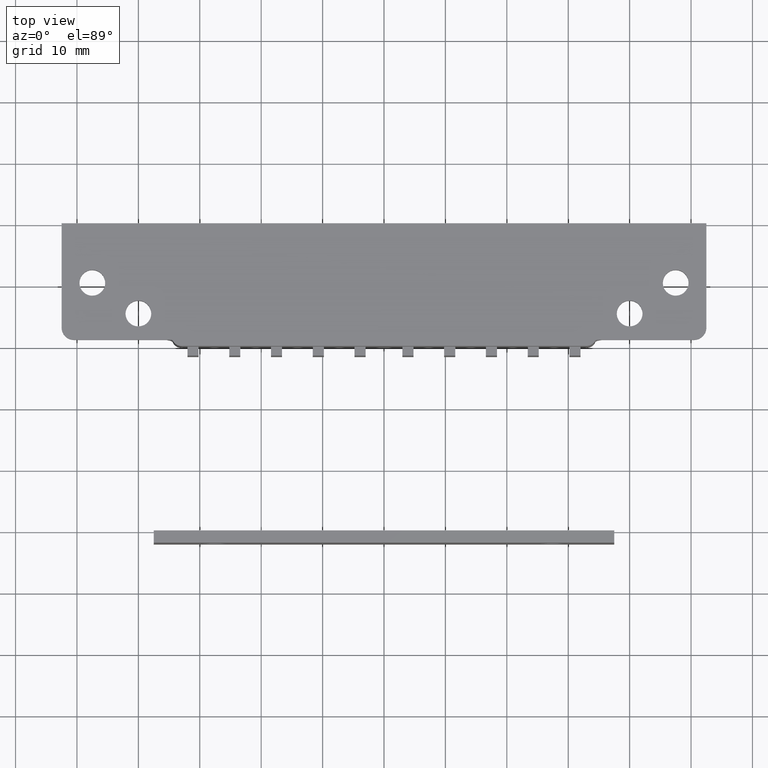
[diagram: clean part render]
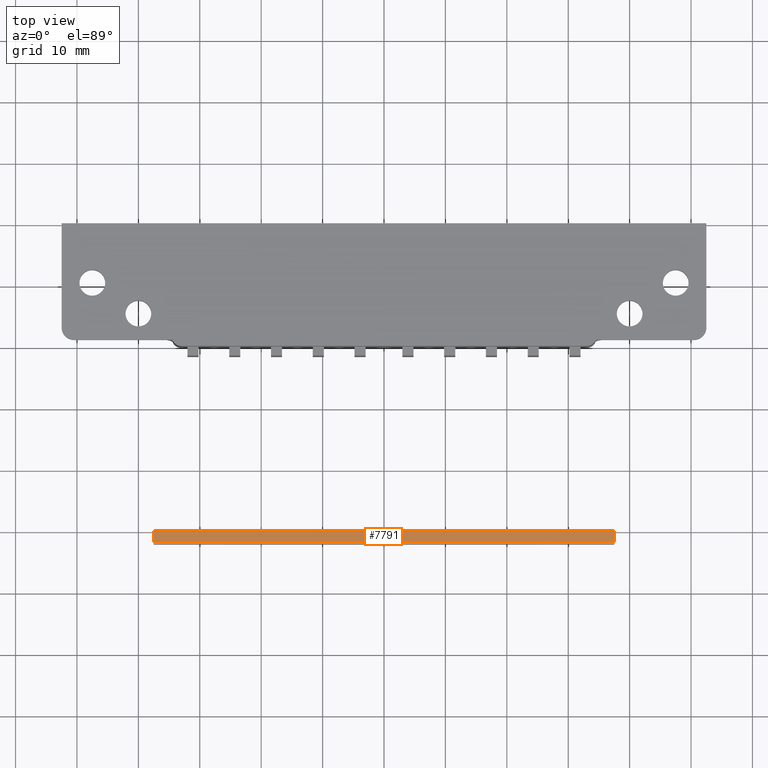
[diagram: same view with one face highlighted and labeled with its STEP entity id]
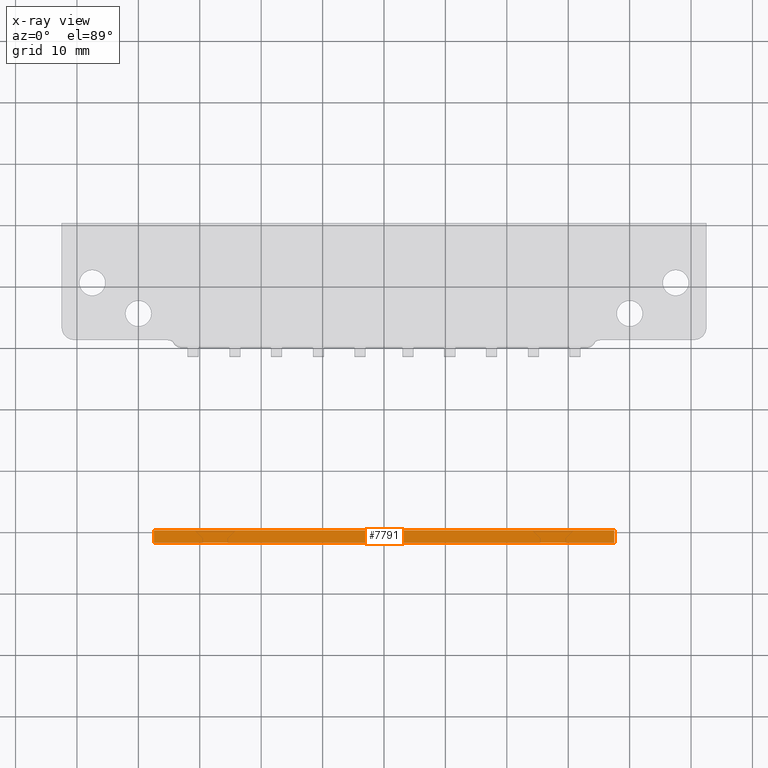
[diagram: x-ray of the same camera — body ghosted, the highlighted face saturated]
A machine part, top view. The second image highlights one B-rep face of the part: STEP entity #7791.
The next image is the same camera in x-ray: the body ghosted, the highlighted face saturated — about 0% of this face is hidden behind the body in this view.
In plain terms, the highlighted face is a freeform B-spline surface patch.
Its self-contained STEP definition (entity closure, byte-faithful):
#7717=CARTESIAN_POINT('',(37.499999999838998,-50.000000000028862,9.499999999988571));
#7718=VERTEX_POINT('',#7717);
#7733=CARTESIAN_POINT('',(-37.500000000148148,-50.000000000028862,9.499999999973680));
#7734=VERTEX_POINT('',#7733);
#7740=CARTESIAN_POINT('',(-37.500000000148148,-50.000000000028862,9.499999999973680));
#7741=CARTESIAN_POINT('',(37.499999999838998,-50.000000000028862,9.499999999988571));
#7742=QUASI_UNIFORM_CURVE('',1,(#7740,#7741),.UNSPECIFIED.,.F.,.U.);
#7743=EDGE_CURVE('',#7734,#7718,#7742,.T.);
#7764=CARTESIAN_POINT('',(-41.246249854782953,-52.099899996152601,9.499999999973062));
#7765=CARTESIAN_POINT('',(41.246251866130571,-52.099899996152601,9.499999999989317));
#7766=CARTESIAN_POINT('',(-41.246249854782953,-49.900099950261072,9.499999999973063));
#7767=CARTESIAN_POINT('',(41.246251866130571,-49.900099950261072,9.499999999989317));
#7768=B_SPLINE_SURFACE_WITH_KNOTS('',1,1,((#7764,#7766),(#7765,#7767)),.UNSPECIFIED.,.F.,.F.,.U.,(2,2),(2,2),(0.0,82.492501720913523),(0.0,2.199800045891530),.UNSPECIFIED.);
#7769=ORIENTED_EDGE('',*,*,#7743,.F.);
#7770=CARTESIAN_POINT('',(-37.500000000148148,-52.000000000028983,9.499999999973680));
#7771=VERTEX_POINT('',#7770);
#7772=CARTESIAN_POINT('',(-37.500000000148148,-52.000000000028983,9.499999999973680));
#7773=CARTESIAN_POINT('',(-37.500000000148148,-50.000000000028862,9.499999999973680));
#7774=QUASI_UNIFORM_CURVE('',1,(#7772,#7773),.UNSPECIFIED.,.F.,.U.);
#7775=EDGE_CURVE('',#7771,#7734,#7774,.T.);
#7776=ORIENTED_EDGE('',*,*,#7775,.F.);
#7777=CARTESIAN_POINT('',(37.499999999838998,-52.000000000028983,9.499999999988571));
#7778=VERTEX_POINT('',#7777);
#7779=CARTESIAN_POINT('',(-37.500000000148148,-52.000000000028983,9.499999999973680));
#7780=CARTESIAN_POINT('',(37.499999999838998,-52.000000000028983,9.499999999988571));
#7781=QUASI_UNIFORM_CURVE('',1,(#7779,#7780),.UNSPECIFIED.,.F.,.U.);
#7782=EDGE_CURVE('',#7771,#7778,#7781,.T.);
#7783=ORIENTED_EDGE('',*,*,#7782,.T.);
#7784=CARTESIAN_POINT('',(37.499999999838998,-52.000000000028983,9.499999999988571));
#7785=CARTESIAN_POINT('',(37.499999999838998,-50.000000000028862,9.499999999988571));
#7786=QUASI_UNIFORM_CURVE('',1,(#7784,#7785),.UNSPECIFIED.,.F.,.U.);
#7787=EDGE_CURVE('',#7778,#7718,#7786,.T.);
#7788=ORIENTED_EDGE('',*,*,#7787,.T.);
#7789=EDGE_LOOP('',(#7769,#7776,#7783,#7788));
#7790=FACE_OUTER_BOUND('',#7789,.T.);
#7791=ADVANCED_FACE('',(#7790),#7768,.T.);